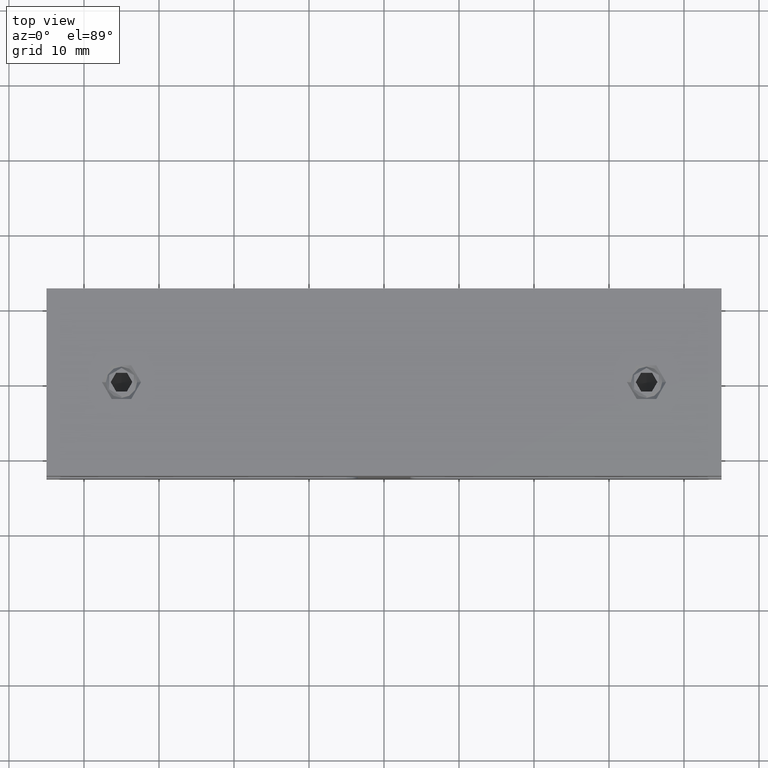
[diagram: clean part render]
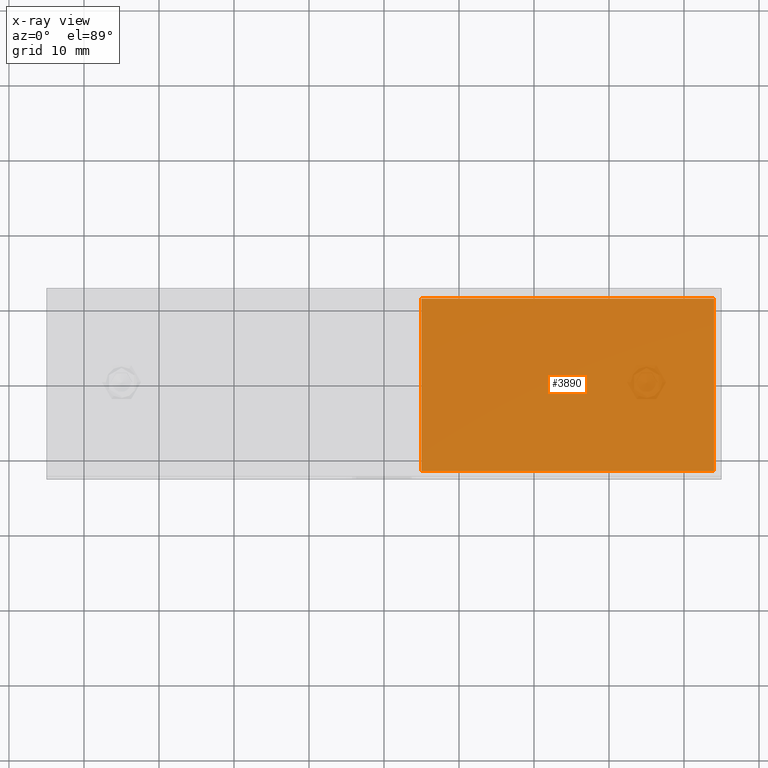
[diagram: x-ray — body ghosted, one internal face saturated and labeled with its STEP entity id]
A machine part, top view, then the same camera in x-ray: the body is ghosted and one INTERNAL B-rep face — a face not visible from any outside direction — is saturated and labeled: STEP entity #3890.
In plain terms, the highlighted planar face has unit normal (0, 0, 1).
Its self-contained STEP definition (entity closure, byte-faithful):
#123 = ORIENTED_EDGE ( 'NONE', *, *, #10970, .F. ) ;
#865 = DIRECTION ( 'NONE',  ( 1.508455196501571429E-16, 1.000000000000000000, -0.000000000000000000 ) ) ;
#1872 = DIRECTION ( 'NONE',  ( 0.000000000000000000, -1.000000000000000000, 0.000000000000000000 ) ) ;
#2188 = CARTESIAN_POINT ( 'NONE',  ( -19.50000000000000000, -11.50000000000000178, -0.5000000000000004441 ) ) ;
#2314 = LINE ( 'NONE', #9427, #5739 ) ;
#3331 = CARTESIAN_POINT ( 'NONE',  ( -19.50000000000000000, 11.50000000000000000, -0.5000000000000004441 ) ) ;
#3890 = ADVANCED_FACE ( 'NONE', ( #20825 ), #6142, .F. ) ;
#4255 = VERTEX_POINT ( 'NONE', #2188 ) ;
#4361 = DIRECTION ( 'NONE',  ( -0.000000000000000000, 0.000000000000000000, 1.000000000000000000 ) ) ;
#5562 = DIRECTION ( 'NONE',  ( -1.000000000000000000, -0.000000000000000000, -0.000000000000000000 ) ) ;
#5739 = VECTOR ( 'NONE', #865, 1000.000000000000000 ) ;
#6142 = PLANE ( 'NONE',  #11421 ) ;
#6222 = LINE ( 'NONE', #14232, #16993 ) ;
#6591 = VECTOR ( 'NONE', #1872, 1000.000000000000000 ) ;
#6716 = VECTOR ( 'NONE', #10719, 1000.000000000000000 ) ;
#6993 = ORIENTED_EDGE ( 'NONE', *, *, #11723, .F. ) ;
#7066 = VERTEX_POINT ( 'NONE', #15765 ) ;
#7249 = LINE ( 'NONE', #9155, #6716 ) ;
#7312 = EDGE_LOOP ( 'NONE', ( #9636, #6993, #17603, #123 ) ) ;
#8729 = LINE ( 'NONE', #11974, #6591 ) ;
#9155 = CARTESIAN_POINT ( 'NONE',  ( -19.50000000000000000, -11.50000000000000178, -0.5000000000000004441 ) ) ;
#9427 = CARTESIAN_POINT ( 'NONE',  ( 19.50000000000000355, 11.50000000000000000, -0.5000000000000004441 ) ) ;
#9636 = ORIENTED_EDGE ( 'NONE', *, *, #20907, .F. ) ;
#10270 = CARTESIAN_POINT ( 'NONE',  ( 19.49999999999998934, -11.50000000000000178, -0.5000000000000004441 ) ) ;
#10719 = DIRECTION ( 'NONE',  ( 1.000000000000000000, 0.000000000000000000, 0.000000000000000000 ) ) ;
#10970 = EDGE_CURVE ( 'NONE', #7066, #17367, #6222, .T. ) ;
#11421 = AXIS2_PLACEMENT_3D ( 'NONE', #16290, #4361, #16151 ) ;
#11559 = VERTEX_POINT ( 'NONE', #10270 ) ;
#11723 = EDGE_CURVE ( 'NONE', #4255, #11559, #7249, .T. ) ;
#11974 = CARTESIAN_POINT ( 'NONE',  ( -19.50000000000000000, 11.50000000000000000, -0.5000000000000004441 ) ) ;
#14232 = CARTESIAN_POINT ( 'NONE',  ( -19.50000000000000000, 11.50000000000000000, -0.5000000000000004441 ) ) ;
#15765 = CARTESIAN_POINT ( 'NONE',  ( 19.50000000000000355, 11.50000000000000000, -0.5000000000000004441 ) ) ;
#16151 = DIRECTION ( 'NONE',  ( 1.000000000000000000, 0.000000000000000000, 0.000000000000000000 ) ) ;
#16290 = CARTESIAN_POINT ( 'NONE',  ( 0.000000000000000000, 0.000000000000000000, -0.5000000000000004441 ) ) ;
#16940 = EDGE_CURVE ( 'NONE', #17367, #4255, #8729, .T. ) ;
#16993 = VECTOR ( 'NONE', #5562, 1000.000000000000000 ) ;
#17367 = VERTEX_POINT ( 'NONE', #3331 ) ;
#17603 = ORIENTED_EDGE ( 'NONE', *, *, #16940, .F. ) ;
#20825 = FACE_OUTER_BOUND ( 'NONE', #7312, .T. ) ;
#20907 = EDGE_CURVE ( 'NONE', #11559, #7066, #2314, .T. ) ;